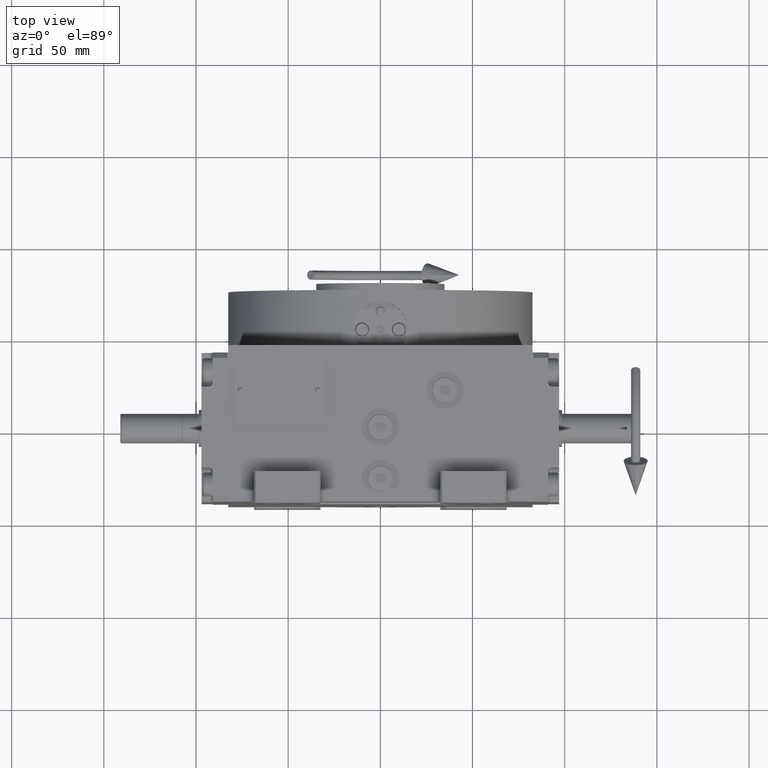
[diagram: clean part render]
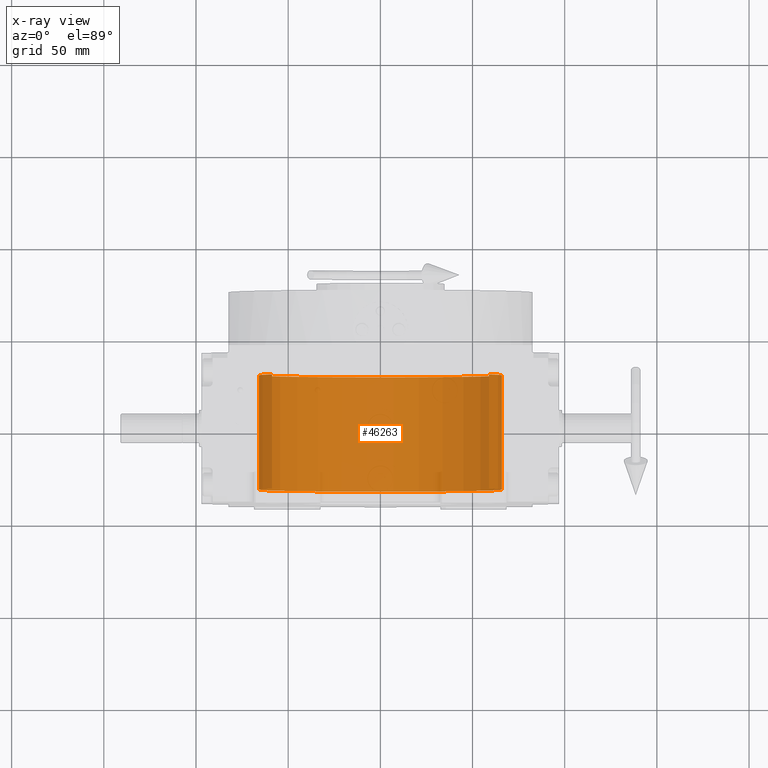
[diagram: x-ray — body ghosted, one internal face saturated and labeled with its STEP entity id]
A machine part, top view, then the same camera in x-ray: the body is ghosted and one INTERNAL B-rep face — a face not visible from any outside direction — is saturated and labeled: STEP entity #46263.
In plain terms, the highlighted cylindrical surface (partial cylindrical patch) has radius 66 mm, axis along (0, 1, 0).
Its self-contained STEP definition (entity closure, byte-faithful):
#945 = CYLINDRICAL_SURFACE ( 'NONE', #41078, 66.00000000000000000 ) ;
#2521 = CIRCLE ( 'NONE', #18993, 66.00000000000000000 ) ;
#2864 = VERTEX_POINT ( 'NONE', #19619 ) ;
#6655 = AXIS2_PLACEMENT_3D ( 'NONE', #37083, #13424, #7652 ) ;
#7652 = DIRECTION ( 'NONE',  ( 0.000000000000000000, 0.000000000000000000, 1.000000000000000000 ) ) ;
#9807 = CARTESIAN_POINT ( 'NONE',  ( 0.000000000000000000, 30.00000000000001421, 0.000000000000000000 ) ) ;
#10202 = CARTESIAN_POINT ( 'NONE',  ( 58.78775382679628336, 98.15000000000000568, 30.00000000000000000 ) ) ;
#10587 = FACE_OUTER_BOUND ( 'NONE', #22152, .T. ) ;
#11395 = EDGE_CURVE ( 'NONE', #2864, #44764, #50207, .T. ) ;
#13424 = DIRECTION ( 'NONE',  ( -0.000000000000000000, 1.000000000000000000, -0.000000000000000000 ) ) ;
#14060 = VECTOR ( 'NONE', #29949, 1000.000000000000000 ) ;
#16104 = DIRECTION ( 'NONE',  ( 0.000000000000000000, 0.000000000000000000, 1.000000000000000000 ) ) ;
#17999 = CIRCLE ( 'NONE', #6655, 66.00000000000000000 ) ;
#18993 = AXIS2_PLACEMENT_3D ( 'NONE', #9807, #48938, #55080 ) ;
#19619 = CARTESIAN_POINT ( 'NONE',  ( -58.78775382679628336, 30.00000000000001421, 30.00000000000000000 ) ) ;
#21962 = CARTESIAN_POINT ( 'NONE',  ( 58.78775382679628336, 30.00000000000001421, 30.00000000000000000 ) ) ;
#22152 = EDGE_LOOP ( 'NONE', ( #26181, #62594, #53440, #22853 ) ) ;
#22853 = ORIENTED_EDGE ( 'NONE', *, *, #34287, .T. ) ;
#25823 = DIRECTION ( 'NONE',  ( -0.000000000000000000, 1.000000000000000000, -0.000000000000000000 ) ) ;
#26181 = ORIENTED_EDGE ( 'NONE', *, *, #11395, .T. ) ;
#29851 = DIRECTION ( 'NONE',  ( 0.000000000000000000, -1.000000000000000000, 0.000000000000000000 ) ) ;
#29949 = DIRECTION ( 'NONE',  ( -0.000000000000000000, 1.000000000000000000, -0.000000000000000000 ) ) ;
#30680 = CARTESIAN_POINT ( 'NONE',  ( 0.000000000000000000, 98.15000000000000568, 0.000000000000000000 ) ) ;
#31693 = CARTESIAN_POINT ( 'NONE',  ( 58.78775382679628336, -31.99999999999998579, 30.00000000000000000 ) ) ;
#32512 = EDGE_CURVE ( 'NONE', #61556, #44764, #17999, .T. ) ;
#34287 = EDGE_CURVE ( 'NONE', #43202, #2864, #2521, .T. ) ;
#35022 = CARTESIAN_POINT ( 'NONE',  ( -58.78775382679628336, 98.15000000000000568, 30.00000000000000000 ) ) ;
#37045 = EDGE_CURVE ( 'NONE', #61556, #43202, #48396, .T. ) ;
#37083 = CARTESIAN_POINT ( 'NONE',  ( 0.000000000000000000, -31.99999999999998579, 0.000000000000000000 ) ) ;
#41078 = AXIS2_PLACEMENT_3D ( 'NONE', #30680, #25823, #16104 ) ;
#43202 = VERTEX_POINT ( 'NONE', #21962 ) ;
#43595 = CARTESIAN_POINT ( 'NONE',  ( -58.78775382679628336, -31.99999999999998579, 30.00000000000000000 ) ) ;
#44764 = VERTEX_POINT ( 'NONE', #43595 ) ;
#46263 = ADVANCED_FACE ( 'NONE', ( #10587 ), #945, .F. ) ;
#48396 = LINE ( 'NONE', #10202, #14060 ) ;
#48938 = DIRECTION ( 'NONE',  ( -0.000000000000000000, 1.000000000000000000, -0.000000000000000000 ) ) ;
#50207 = LINE ( 'NONE', #35022, #50935 ) ;
#50935 = VECTOR ( 'NONE', #29851, 1000.000000000000000 ) ;
#53440 = ORIENTED_EDGE ( 'NONE', *, *, #37045, .T. ) ;
#55080 = DIRECTION ( 'NONE',  ( 0.000000000000000000, 0.000000000000000000, 1.000000000000000000 ) ) ;
#61556 = VERTEX_POINT ( 'NONE', #31693 ) ;
#62594 = ORIENTED_EDGE ( 'NONE', *, *, #32512, .F. ) ;